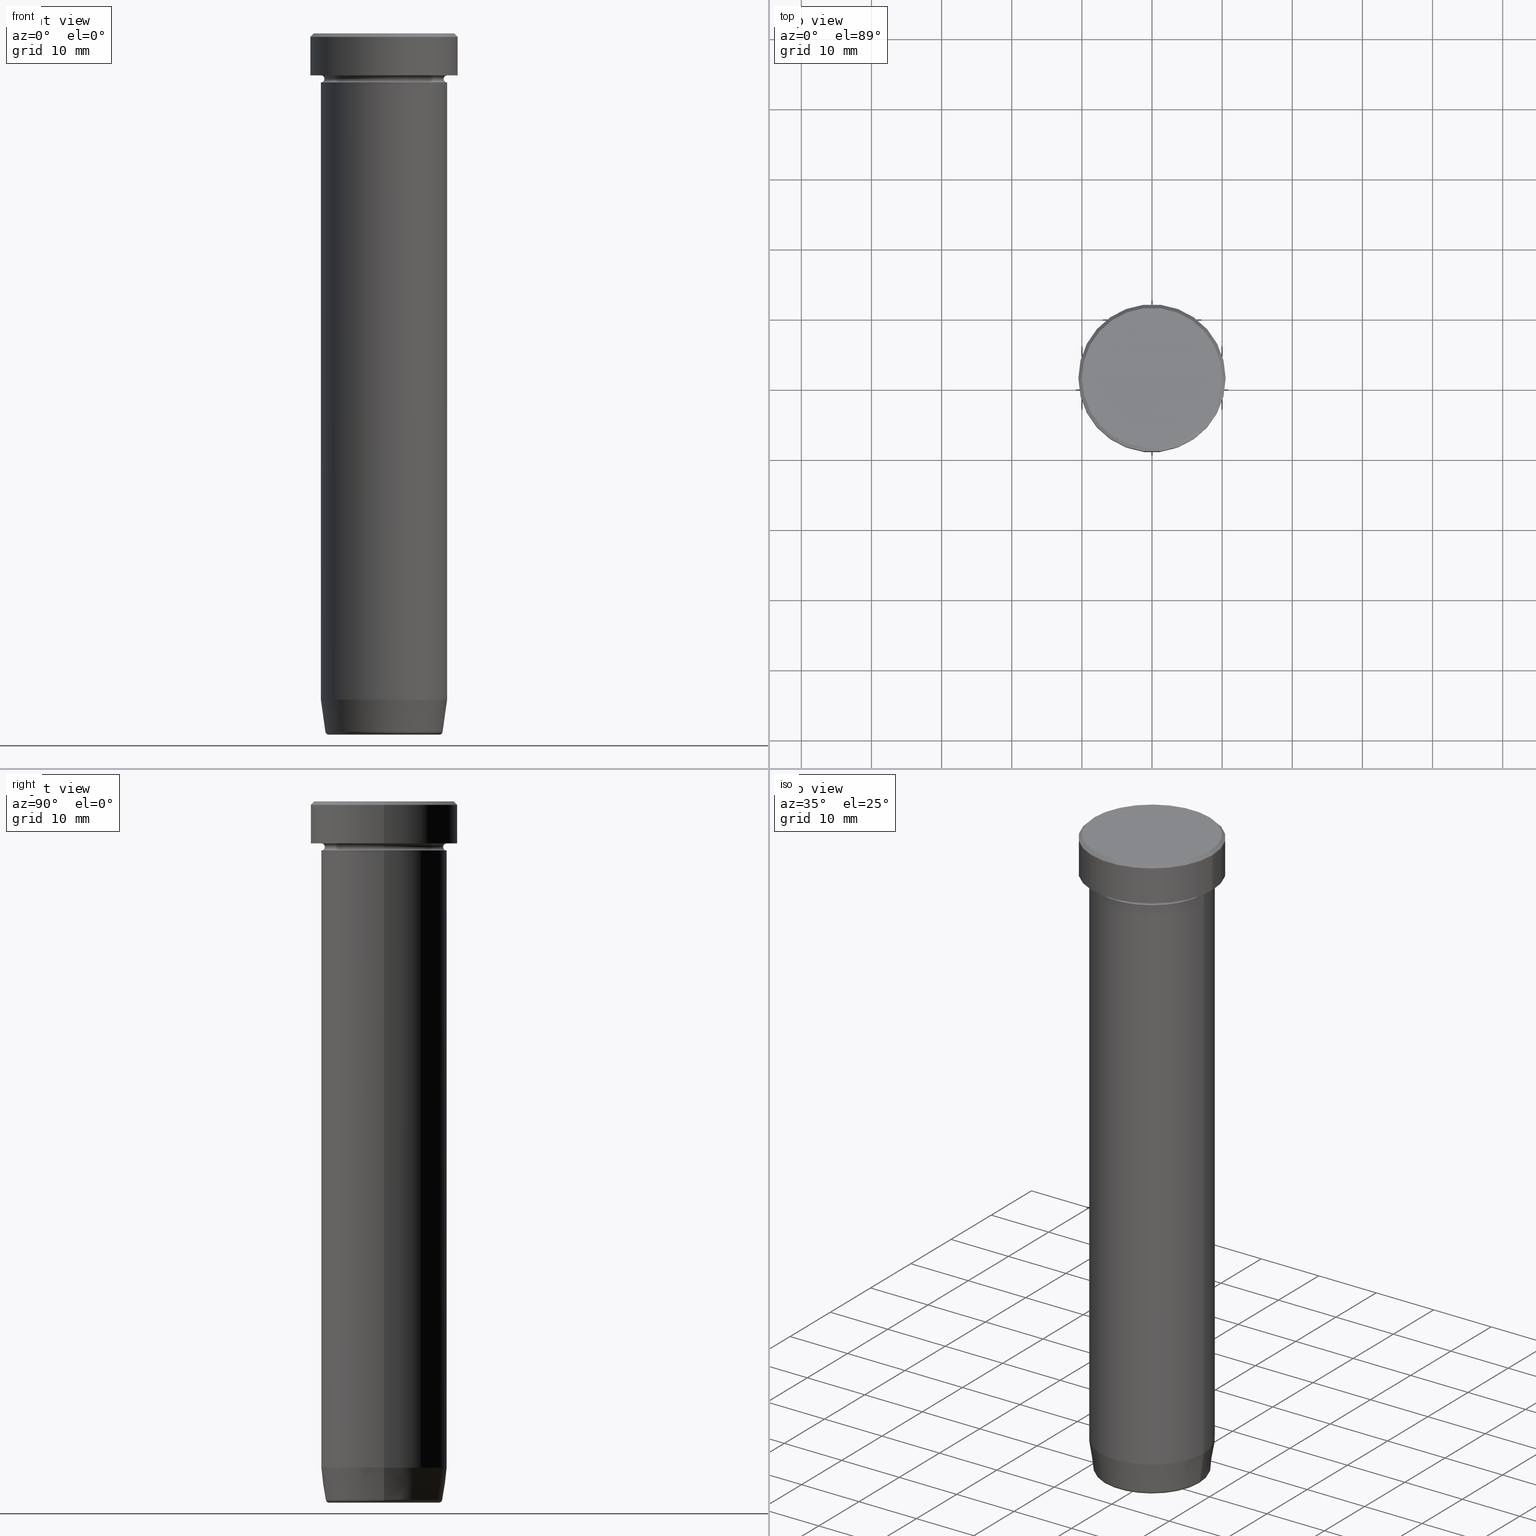
[diagram: canonical four-view strip — front | top / right | iso, engineering-drawing reading convention]
A machine part, canonical four-view strip (front | top / right | iso — engineering-drawing reading convention). The complete STEP part file that produces these views, byte-faithful:
ISO-10303-21;
HEADER;
FILE_DESCRIPTION (( 'STEP AP203' ),
    '1' );
FILE_NAME ('7a6f.STEP',
    '2024-01-02T19:33:57',
    ( '' ),
    ( '' ),
    'SwSTEP 2.0',
    'SolidWorks 2019',
    '' );
FILE_SCHEMA (( 'CONFIG_CONTROL_DESIGN' ));
ENDSEC;

DATA;
#1 = EDGE_CURVE ( 'NONE', #577, #441, #190, .T. ) ;
#2 = CARTESIAN_POINT ( 'NONE',  ( 0.000000000000000000, 0.000000000000000000, -0.5000000000000023315 ) ) ;
#3 = CARTESIAN_POINT ( 'NONE',  ( 0.000000000000000000, 0.000000000000000000, -6.500000000000000888 ) ) ;
#4 = PERSON_AND_ORGANIZATION ( #403, #466 ) ;
#5 = CYLINDRICAL_SURFACE ( 'NONE', #36, 9.000000000000000000 ) ;
#6 = FACE_OUTER_BOUND ( 'NONE', #435, .T. ) ;
#7 = VECTOR ( 'NONE', #461, 1000.000000000000000 ) ;
#8 = DIRECTION ( 'NONE',  ( 0.000000000000000000, 0.000000000000000000, -1.000000000000000000 ) ) ;
#9 = DIRECTION ( 'NONE',  ( -1.000000000000000000, 0.000000000000000000, 0.000000000000000000 ) ) ;
#10 = DIRECTION ( 'NONE',  ( -1.000000000000000000, 0.000000000000000000, 0.000000000000000000 ) ) ;
#11 = CARTESIAN_POINT ( 'NONE',  ( 0.000000000000000000, 0.000000000000000000, 0.000000000000000000 ) ) ;
#12 = ADVANCED_FACE ( 'NONE', ( #47 ), #448, .F. ) ;
#13 = ADVANCED_FACE ( 'NONE', ( #307 ), #498, .T. ) ;
#14 = DIRECTION ( 'NONE',  ( 1.000000000000000000, 0.000000000000000000, 0.000000000000000000 ) ) ;
#15 = CIRCLE ( 'NONE', #58, 9.000000000000000000 ) ;
#16 = ORIENTED_EDGE ( 'NONE', *, *, #437, .T. ) ;
#17 = CARTESIAN_POINT ( 'NONE',  ( 0.000000000000000000, 0.000000000000000000, -100.0000000000000000 ) ) ;
#18 = DIRECTION ( 'NONE',  ( 1.000000000000000000, 0.000000000000000000, 0.000000000000000000 ) ) ;
#19 = EDGE_CURVE ( 'NONE', #206, #134, #452, .T. ) ;
#20 = ORIENTED_EDGE ( 'NONE', *, *, #447, .F. ) ;
#21 = DIRECTION ( 'NONE',  ( 1.000000000000000000, 0.000000000000000000, 0.000000000000000000 ) ) ;
#22 = VERTEX_POINT ( 'NONE', #367 ) ;
#23 = TOROIDAL_SURFACE ( 'NONE', #163, 9.000000000000000000, 0.5000000000000000000 ) ;
#24 = PERSON_AND_ORGANIZATION ( #403, #466 ) ;
#25 = DIRECTION ( 'NONE',  ( -0.000000000000000000, -0.000000000000000000, 1.000000000000000000 ) ) ;
#26 = VERTEX_POINT ( 'NONE', #55 ) ;
#27 = ORIENTED_EDGE ( 'NONE', *, *, #473, .T. ) ;
#28 = AXIS2_PLACEMENT_3D ( 'NONE', #41, #52, #504 ) ;
#29 = APPROVAL_PERSON_ORGANIZATION ( #75, #501, #342 ) ;
#30 = LINE ( 'NONE', #218, #166 ) ;
#31 = ORIENTED_EDGE ( 'NONE', *, *, #585, .T. ) ;
#32 = CARTESIAN_POINT ( 'NONE',  ( -10.50000000000000000, 1.285879139104720831E-15, -0.5000000000000023315 ) ) ;
#33 = ADVANCED_FACE ( 'NONE', ( #512 ), #551, .F. ) ;
#34 = ORIENTED_EDGE ( 'NONE', *, *, #200, .T. ) ;
#35 = CALENDAR_DATE ( 2024, 2, 1 ) ;
#36 = AXIS2_PLACEMENT_3D ( 'NONE', #329, #104, #540 ) ;
#37 = DIRECTION ( 'NONE',  ( 1.000000000000000000, 0.000000000000000000, 0.000000000000000000 ) ) ;
#38 = ORIENTED_EDGE ( 'NONE', *, *, #59, .T. ) ;
#39 = DIRECTION ( 'NONE',  ( -0.000000000000000000, -0.000000000000000000, 1.000000000000000000 ) ) ;
#40 = CIRCLE ( 'NONE', #28, 10.00000000000000178 ) ;
#41 = CARTESIAN_POINT ( 'NONE',  ( 0.000000000000000000, 0.000000000000000000, 0.000000000000000000 ) ) ;
#42 = CIRCLE ( 'NONE', #272, 9.000000000000000000 ) ;
#43 = ORIENTED_EDGE ( 'NONE', *, *, #213, .F. ) ;
#44 = EDGE_CURVE ( 'NONE', #491, #255, #558, .T. ) ;
#45 = DIRECTION ( 'NONE',  ( -0.000000000000000000, -1.000000000000000000, -0.000000000000000000 ) ) ;
#46 = AXIS2_PLACEMENT_3D ( 'NONE', #565, #116, #287 ) ;
#47 = FACE_OUTER_BOUND ( 'NONE', #432, .T. ) ;
#48 = FACE_OUTER_BOUND ( 'NONE', #223, .T. ) ;
#49 = VECTOR ( 'NONE', #84, 1000.000000000000000 ) ;
#50 = DIRECTION ( 'NONE',  ( 0.000000000000000000, -0.000000000000000000, 1.000000000000000000 ) ) ;
#51 = LOCAL_TIME ( 20, 33, 57.00000000000000000, #360 ) ;
#52 = DIRECTION ( 'NONE',  ( -0.000000000000000000, -0.000000000000000000, 1.000000000000000000 ) ) ;
#53 = ORIENTED_EDGE ( 'NONE', *, *, #19, .T. ) ;
#54 = CC_DESIGN_PERSON_AND_ORGANIZATION_ASSIGNMENT ( #468, #425, ( #334 ) ) ;
#55 = CARTESIAN_POINT ( 'NONE',  ( 8.357786491950712104, 0.000000000000000000, -99.56958655048003948 ) ) ;
#56 = CARTESIAN_POINT ( 'NONE',  ( 8.499999999999998224, 0.000000000000000000, -6.500000000000000888 ) ) ;
#57 = DIRECTION ( 'NONE',  ( -0.000000000000000000, -0.000000000000000000, 1.000000000000000000 ) ) ;
#58 = AXIS2_PLACEMENT_3D ( 'NONE', #502, #374, #543 ) ;
#59 = EDGE_CURVE ( 'NONE', #74, #22, #524, .T. ) ;
#60 = CARTESIAN_POINT ( 'NONE',  ( 7.862652457579924814, 0.000000000000000000, -100.0000000000000000 ) ) ;
#61 = CARTESIAN_POINT ( 'NONE',  ( 10.50000000000000000, 0.000000000000000000, -0.5000000000000023315 ) ) ;
#62 = CYLINDRICAL_SURFACE ( 'NONE', #289, 9.000000000000000000 ) ;
#63 = DIRECTION ( 'NONE',  ( -0.000000000000000000, -0.000000000000000000, 1.000000000000000000 ) ) ;
#64 = AXIS2_PLACEMENT_3D ( 'NONE', #517, #467, #157 ) ;
#65 = AXIS2_PLACEMENT_3D ( 'NONE', #557, #284, #151 ) ;
#66 = ORIENTED_EDGE ( 'NONE', *, *, #44, .F. ) ;
#67 =( NAMED_UNIT ( * ) SI_UNIT ( $, .STERADIAN. ) SOLID_ANGLE_UNIT ( ) );
#68 = CIRCLE ( 'NONE', #475, 0.5000000000000004441 ) ;
#69 = LINE ( 'NONE', #415, #7 ) ;
#70 = APPROVAL_PERSON_ORGANIZATION ( #4, #313, #196 ) ;
#71 = DIRECTION ( 'NONE',  ( -0.000000000000000000, -0.000000000000000000, 1.000000000000000000 ) ) ;
#72 = DIRECTION ( 'NONE',  ( -0.000000000000000000, -0.000000000000000000, 1.000000000000000000 ) ) ;
#73 = ADVANCED_FACE ( 'NONE', ( #6 ), #326, .T. ) ;
#74 = VERTEX_POINT ( 'NONE', #56 ) ;
#75 = PERSON_AND_ORGANIZATION ( #403, #466 ) ;
#76 = DIRECTION ( 'NONE',  ( 0.000000000000000000, 0.000000000000000000, -1.000000000000000000 ) ) ;
#77 = ORIENTED_EDGE ( 'NONE', *, *, #482, .F. ) ;
#78 = ORIENTED_EDGE ( 'NONE', *, *, #457, .T. ) ;
#79 = CIRCLE ( 'NONE', #46, 9.000000000000000000 ) ;
#80 = DATE_AND_TIME ( #479, #251 ) ;
#81 = DIRECTION ( 'NONE',  ( 1.224646799147353207E-16, 1.000000000000000000, 0.000000000000000000 ) ) ;
#82 = ORIENTED_EDGE ( 'NONE', *, *, #554, .F. ) ;
#83 = AXIS2_PLACEMENT_3D ( 'NONE', #545, #137, #90 ) ;
#84 = DIRECTION ( 'NONE',  ( -0.000000000000000000, -0.000000000000000000, 1.000000000000000000 ) ) ;
#85 = ADVANCED_FACE ( 'NONE', ( #290 ), #62, .T. ) ;
#86 = VERTEX_POINT ( 'NONE', #323 ) ;
#87 = AXIS2_PLACEMENT_3D ( 'NONE', #381, #297, #18 ) ;
#88 = CARTESIAN_POINT ( 'NONE',  ( 0.000000000000000000, 0.000000000000000000, -99.56958655048003948 ) ) ;
#89 = VECTOR ( 'NONE', #476, 1000.000000000000000 ) ;
#90 = DIRECTION ( 'NONE',  ( -1.000000000000000000, 0.000000000000000000, -0.000000000000000000 ) ) ;
#91 = CIRCLE ( 'NONE', #315, 9.000000000000000000 ) ;
#92 = AXIS2_PLACEMENT_3D ( 'NONE', #503, #181, #463 ) ;
#93 = EDGE_CURVE ( 'NONE', #582, #459, #69, .T. ) ;
#94 = CARTESIAN_POINT ( 'NONE',  ( 0.000000000000000000, 0.000000000000000000, 0.000000000000000000 ) ) ;
#95 = ADVANCED_FACE ( 'NONE', ( #590 ), #492, .T. ) ;
#96 = DIRECTION ( 'NONE',  ( -1.000000000000000000, 0.000000000000000000, 0.000000000000000000 ) ) ;
#97 = AXIS2_PLACEMENT_3D ( 'NONE', #340, #293, #555 ) ;
#98 = CARTESIAN_POINT ( 'NONE',  ( 0.000000000000000000, 2.449293598294707302E-15, -100.0000000000000000 ) ) ;
#99 = DIRECTION ( 'NONE',  ( -1.000000000000000000, 1.224646799147353454E-16, 0.000000000000000000 ) ) ;
#100 = ORIENTED_EDGE ( 'NONE', *, *, #554, .T. ) ;
#101 = VECTOR ( 'NONE', #449, 1000.000000000000000 ) ;
#102 = DIRECTION ( 'NONE',  ( -0.000000000000000000, -0.000000000000000000, 1.000000000000000000 ) ) ;
#103 = COORDINATED_UNIVERSAL_TIME_OFFSET ( 1, 0, .AHEAD. ) ;
#104 = DIRECTION ( 'NONE',  ( -0.000000000000000000, -0.000000000000000000, 1.000000000000000000 ) ) ;
#105 = ADVANCED_FACE ( 'NONE', ( #366 ), #541, .F. ) ;
#106 = CC_DESIGN_PERSON_AND_ORGANIZATION_ASSIGNMENT ( #346, #128, ( #288 ) ) ;
#107 = ADVANCED_FACE ( 'NONE', ( #234 ), #175, .T. ) ;
#108 = DIRECTION ( 'NONE',  ( -0.000000000000000000, -0.000000000000000000, 1.000000000000000000 ) ) ;
#109 = AXIS2_PLACEMENT_3D ( 'NONE', #438, #535, #37 ) ;
#110 = CC_DESIGN_APPROVAL ( #501, ( #288 ) ) ;
#111 = CARTESIAN_POINT ( 'NONE',  ( -10.50000000000000000, 1.285879139104720831E-15, 0.000000000000000000 ) ) ;
#112 = FACE_OUTER_BOUND ( 'NONE', #305, .T. ) ;
#113 = EDGE_CURVE ( 'NONE', #74, #371, #424, .T. ) ;
#114 = CYLINDRICAL_SURFACE ( 'NONE', #407, 9.000000000000000000 ) ;
#115 = CC_DESIGN_PERSON_AND_ORGANIZATION_ASSIGNMENT ( #253, #256, ( #288 ) ) ;
#116 = DIRECTION ( 'NONE',  ( -0.000000000000000000, -0.000000000000000000, 1.000000000000000000 ) ) ;
#117 = ORIENTED_EDGE ( 'NONE', *, *, #570, .T. ) ;
#118 = CARTESIAN_POINT ( 'NONE',  ( 9.000000000000000000, 0.000000000000000000, -7.000000000000000000 ) ) ;
#119 = VECTOR ( 'NONE', #339, 1000.000000000000000 ) ;
#120 = DATE_AND_TIME ( #433, #51 ) ;
#121 = DIRECTION ( 'NONE',  ( 1.000000000000000000, 0.000000000000000000, 0.000000000000000000 ) ) ;
#122 = EDGE_LOOP ( 'NONE', ( #572, #576 ) ) ;
#123 = ORIENTED_EDGE ( 'NONE', *, *, #457, .F. ) ;
#124 = DATE_AND_TIME ( #35, #536 ) ;
#125 = CARTESIAN_POINT ( 'NONE',  ( 0.000000000000000000, 0.000000000000000000, 0.000000000000000000 ) ) ;
#126 = ORIENTED_EDGE ( 'NONE', *, *, #373, .F. ) ;
#127 = EDGE_LOOP ( 'NONE', ( #296, #31 ) ) ;
#128 = PERSON_AND_ORGANIZATION_ROLE ( 'design_supplier' ) ;
#129 = DIRECTION ( 'NONE',  ( 0.000000000000000000, 0.000000000000000000, -1.000000000000000000 ) ) ;
#130 = ORIENTED_EDGE ( 'NONE', *, *, #161, .T. ) ;
#131 = CIRCLE ( 'NONE', #298, 9.000000000000000000 ) ;
#132 = DATE_AND_TIME ( #261, #189 ) ;
#133 = DIRECTION ( 'NONE',  ( 0.000000000000000000, 0.000000000000000000, -1.000000000000000000 ) ) ;
#134 = VERTEX_POINT ( 'NONE', #249 ) ;
#135 = VERTEX_POINT ( 'NONE', #199 ) ;
#136 = TOROIDAL_SURFACE ( 'NONE', #87, 9.000000000000000000, 0.5000000000000000000 ) ;
#137 = DIRECTION ( 'NONE',  ( 0.000000000000000000, 0.000000000000000000, -1.000000000000000000 ) ) ;
#138 = DIRECTION ( 'NONE',  ( 1.224646799147353207E-16, 1.000000000000000000, 0.000000000000000000 ) ) ;
#139 =( GEOMETRIC_REPRESENTATION_CONTEXT ( 3 ) GLOBAL_UNCERTAINTY_ASSIGNED_CONTEXT ( ( #490 ) ) GLOBAL_UNIT_ASSIGNED_CONTEXT ( ( #207, #383, #67 ) ) REPRESENTATION_CONTEXT ( 'NONE', 'WORKASPACE' ) );
#140 = EDGE_CURVE ( 'NONE', #195, #491, #596, .T. ) ;
#141 = DIRECTION ( 'NONE',  ( 1.000000000000000000, 0.000000000000000000, 0.000000000000000000 ) ) ;
#142 = FACE_OUTER_BOUND ( 'NONE', #214, .T. ) ;
#143 = DIRECTION ( 'NONE',  ( 1.000000000000000000, 0.000000000000000000, 0.000000000000000000 ) ) ;
#144 = ORIENTED_EDGE ( 'NONE', *, *, #93, .T. ) ;
#145 = AXIS2_PLACEMENT_3D ( 'NONE', #550, #194, #372 ) ;
#146 = CARTESIAN_POINT ( 'NONE',  ( 0.000000000000000000, 0.000000000000000000, -100.0000000000000000 ) ) ;
#147 = PERSON_AND_ORGANIZATION ( #403, #466 ) ;
#148 = DIRECTION ( 'NONE',  ( -0.000000000000000000, -0.000000000000000000, 1.000000000000000000 ) ) ;
#149 = DIRECTION ( 'NONE',  ( -0.000000000000000000, -0.000000000000000000, 1.000000000000000000 ) ) ;
#150 = DIRECTION ( 'NONE',  ( -0.000000000000000000, -0.000000000000000000, 1.000000000000000000 ) ) ;
#151 = DIRECTION ( 'NONE',  ( 1.000000000000000000, 0.000000000000000000, 0.000000000000000000 ) ) ;
#152 = ADVANCED_FACE ( 'NONE', ( #428 ), #530, .T. ) ;
#153 = AXIS2_PLACEMENT_3D ( 'NONE', #212, #209, #133 ) ;
#154 = AXIS2_PLACEMENT_3D ( 'NONE', #146, #8, #380 ) ;
#155 = APPLICATION_CONTEXT ( 'configuration controlled 3d designs of mechanical parts and assemblies' ) ;
#156 = CARTESIAN_POINT ( 'NONE',  ( -10.00000000000000178, 0.000000000000000000, 0.000000000000000000 ) ) ;
#157 = DIRECTION ( 'NONE',  ( -1.000000000000000000, -1.224646799147353454E-16, 0.000000000000000000 ) ) ;
#158 = VERTEX_POINT ( 'NONE', #118 ) ;
#159 = EDGE_CURVE ( 'NONE', #436, #158, #79, .T. ) ;
#160 = APPROVAL_STATUS ( 'not_yet_approved' ) ;
#161 = EDGE_CURVE ( 'NONE', #135, #507, #312, .T. ) ;
#162 = CARTESIAN_POINT ( 'NONE',  ( 9.000000000000000000, 0.000000000000000000, -22.00000000000000000 ) ) ;
#163 = AXIS2_PLACEMENT_3D ( 'NONE', #465, #472, #568 ) ;
#164 = VERTEX_POINT ( 'NONE', #61 ) ;
#165 = LINE ( 'NONE', #168, #49 ) ;
#166 = VECTOR ( 'NONE', #390, 1000.000000000000000 ) ;
#167 = ORIENTED_EDGE ( 'NONE', *, *, #240, .F. ) ;
#168 = CARTESIAN_POINT ( 'NONE',  ( 10.50000000000000000, 0.000000000000000000, 0.000000000000000000 ) ) ;
#169 = ADVANCED_FACE ( 'NONE', ( #337 ), #426, .T. ) ;
#170 = ORIENTED_EDGE ( 'NONE', *, *, #331, .F. ) ;
#171 = ADVANCED_FACE ( 'NONE', ( #519 ), #136, .F. ) ;
#172 = ORIENTED_EDGE ( 'NONE', *, *, #592, .F. ) ;
#173 = CARTESIAN_POINT ( 'NONE',  ( 0.000000000000000000, 0.000000000000000000, -100.0000000000000000 ) ) ;
#174 = PRODUCT_RELATED_PRODUCT_CATEGORY ( 'detail', '', ( #334 ) ) ;
#175 = CONICAL_SURFACE ( 'NONE', #319, 8.297295826488038983, 0.1396263401595468356 ) ;
#176 = CARTESIAN_POINT ( 'NONE',  ( 0.000000000000000000, 0.000000000000000000, -6.500000000000000888 ) ) ;
#177 = EDGE_LOOP ( 'NONE', ( #427, #16, #78, #495 ) ) ;
#178 = AXIS2_PLACEMENT_3D ( 'NONE', #173, #129, #347 ) ;
#179 = FACE_OUTER_BOUND ( 'NONE', #237, .T. ) ;
#180 = EDGE_LOOP ( 'NONE', ( #528, #82 ) ) ;
#181 = DIRECTION ( 'NONE',  ( 0.000000000000000000, -0.000000000000000000, 1.000000000000000000 ) ) ;
#182 = CARTESIAN_POINT ( 'NONE',  ( 7.862652457579924814, 0.000000000000000000, -99.50000000000000000 ) ) ;
#183 = ORIENTED_EDGE ( 'NONE', *, *, #1, .F. ) ;
#184 = CARTESIAN_POINT ( 'NONE',  ( 9.000000000000000000, 0.000000000000000000, 0.000000000000000000 ) ) ;
#185 = ORIENTED_EDGE ( 'NONE', *, *, #570, .F. ) ;
#186 = ORIENTED_EDGE ( 'NONE', *, *, #373, .T. ) ;
#187 = CIRCLE ( 'NONE', #336, 0.5000000000000004441 ) ;
#188 = CARTESIAN_POINT ( 'NONE',  ( -9.000000000000000000, 0.000000000000000000, -6.000000000000000000 ) ) ;
#189 = LOCAL_TIME ( 20, 33, 57.00000000000000000, #265 ) ;
#190 = CIRCLE ( 'NONE', #598, 9.000000000000000000 ) ;
#191 = CARTESIAN_POINT ( 'NONE',  ( 0.000000000000000000, 0.000000000000000000, -22.00000000000000000 ) ) ;
#192 = PLANE ( 'NONE',  #83 ) ;
#193 = DIRECTION ( 'NONE',  ( 1.000000000000000000, 0.000000000000000000, 0.000000000000000000 ) ) ;
#194 = DIRECTION ( 'NONE',  ( -0.000000000000000000, -0.000000000000000000, 1.000000000000000000 ) ) ;
#195 = VERTEX_POINT ( 'NONE', #423 ) ;
#196 = APPROVAL_ROLE ( '' ) ;
#197 = CIRCLE ( 'NONE', #178, 7.862652457579924814 ) ;
#198 = VECTOR ( 'NONE', #333, 1000.000000000000000 ) ;
#199 = CARTESIAN_POINT ( 'NONE',  ( 10.00000000000000178, 1.255262969126037241E-15, 0.000000000000000000 ) ) ;
#200 = EDGE_CURVE ( 'NONE', #459, #266, #321, .T. ) ;
#201 = DIRECTION ( 'NONE',  ( -0.000000000000000000, -0.000000000000000000, 1.000000000000000000 ) ) ;
#202 = DIRECTION ( 'NONE',  ( 1.000000000000000000, 0.000000000000000000, 0.000000000000000000 ) ) ;
#203 = AXIS2_PLACEMENT_3D ( 'NONE', #431, #222, #21 ) ;
#204 = CONICAL_SURFACE ( 'NONE', #497, 8.297295826488038983, 0.1396263401595468356 ) ;
#205 = ADVANCED_FACE ( 'NONE', ( #112 ), #23, .F. ) ;
#206 = VERTEX_POINT ( 'NONE', #162 ) ;
#207 =( LENGTH_UNIT ( ) NAMED_UNIT ( * ) SI_UNIT ( .MILLI., .METRE. ) );
#208 = EDGE_LOOP ( 'NONE', ( #304, #219, #43, #172 ) ) ;
#209 = DIRECTION ( 'NONE',  ( 0.000000000000000000, -1.000000000000000000, 0.000000000000000000 ) ) ;
#210 = ORIENTED_EDGE ( 'NONE', *, *, #140, .F. ) ;
#211 = ADVANCED_FACE ( 'NONE', ( #419 ), #5, .T. ) ;
#212 = CARTESIAN_POINT ( 'NONE',  ( 9.000000000000000000, 0.000000000000000000, -6.500000000000000888 ) ) ;
#213 = EDGE_CURVE ( 'NONE', #255, #164, #295, .T. ) ;
#214 = EDGE_LOOP ( 'NONE', ( #518, #144, #185, #123 ) ) ;
#215 = AXIS2_PLACEMENT_3D ( 'NONE', #176, #25, #121 ) ;
#216 = CC_DESIGN_APPROVAL ( #313, ( #254 ) ) ;
#217 = ORIENTED_EDGE ( 'NONE', *, *, #473, .F. ) ;
#218 = CARTESIAN_POINT ( 'NONE',  ( -9.000000000000000000, 1.102182119232617714E-15, 0.000000000000000000 ) ) ;
#219 = ORIENTED_EDGE ( 'NONE', *, *, #240, .T. ) ;
#220 = CARTESIAN_POINT ( 'NONE',  ( 0.000000000000000000, 0.000000000000000000, -100.0000000000000000 ) ) ;
#221 = ORIENTED_EDGE ( 'NONE', *, *, #500, .T. ) ;
#222 = DIRECTION ( 'NONE',  ( -0.000000000000000000, -0.000000000000000000, 1.000000000000000000 ) ) ;
#223 = EDGE_LOOP ( 'NONE', ( #66, #232, #395, #405 ) ) ;
#224 = CARTESIAN_POINT ( 'NONE',  ( 0.000000000000000000, 0.000000000000000000, -22.00000000000000000 ) ) ;
#225 = FACE_OUTER_BOUND ( 'NONE', #180, .T. ) ;
#226 = DIRECTION ( 'NONE',  ( 0.000000000000000000, 0.000000000000000000, -1.000000000000000000 ) ) ;
#227 = ORIENTED_EDGE ( 'NONE', *, *, #229, .T. ) ;
#228 = CARTESIAN_POINT ( 'NONE',  ( -10.00000000000000178, 0.000000000000000000, 0.000000000000000000 ) ) ;
#229 = EDGE_CURVE ( 'NONE', #158, #436, #406, .T. ) ;
#230 = AXIS2_PLACEMENT_3D ( 'NONE', #571, #76, #356 ) ;
#231 = DIRECTION ( 'NONE',  ( -0.000000000000000000, -0.000000000000000000, 1.000000000000000000 ) ) ;
#232 = ORIENTED_EDGE ( 'NONE', *, *, #579, .T. ) ;
#233 = AXIS2_PLACEMENT_3D ( 'NONE', #462, #246, #14 ) ;
#234 = FACE_OUTER_BOUND ( 'NONE', #177, .T. ) ;
#235 = CARTESIAN_POINT ( 'NONE',  ( 0.000000000000000000, 0.000000000000000000, -6.500000000000000888 ) ) ;
#236 = DIRECTION ( 'NONE',  ( 0.000000000000000000, -1.000000000000000000, 0.000000000000000000 ) ) ;
#237 = EDGE_LOOP ( 'NONE', ( #170, #34, #402, #183 ) ) ;
#238 = MECHANICAL_CONTEXT ( 'NONE', #155, 'mechanical' ) ;
#239 = DIRECTION ( 'NONE',  ( -0.000000000000000000, -0.000000000000000000, 1.000000000000000000 ) ) ;
#240 = EDGE_CURVE ( 'NONE', #135, #164, #489, .T. ) ;
#241 = CARTESIAN_POINT ( 'NONE',  ( 0.000000000000000000, 0.000000000000000000, -95.00000000000000000 ) ) ;
#242 = CIRCLE ( 'NONE', #286, 0.5000000000000004441 ) ;
#243 = AXIS2_PLACEMENT_3D ( 'NONE', #464, #108, #202 ) ;
#244 = CARTESIAN_POINT ( 'NONE',  ( 0.000000000000000000, 0.000000000000000000, 0.000000000000000000 ) ) ;
#245 = PRODUCT_DEFINITION_SHAPE ( 'NONE', 'NONE',  #254 ) ;
#246 = DIRECTION ( 'NONE',  ( 0.000000000000000000, 0.000000000000000000, 1.000000000000000000 ) ) ;
#247 = DIRECTION ( 'NONE',  ( 0.000000000000000000, 0.000000000000000000, -1.000000000000000000 ) ) ;
#248 = ORIENTED_EDGE ( 'NONE', *, *, #592, .T. ) ;
#249 = CARTESIAN_POINT ( 'NONE',  ( -9.000000000000000000, 1.102182119232617714E-15, -22.00000000000000000 ) ) ;
#250 = APPROVAL ( #533, 'NEUR�EN�' ) ;
#251 = LOCAL_TIME ( 20, 33, 57.00000000000000000, #351 ) ;
#252 = EDGE_LOOP ( 'NONE', ( #357, #100, #529, #271 ) ) ;
#253 = PERSON_AND_ORGANIZATION ( #403, #466 ) ;
#254 = PRODUCT_DEFINITION ( 'NEZN�M�', '', #288, #575 ) ;
#255 = VERTEX_POINT ( 'NONE', #32 ) ;
#256 = PERSON_AND_ORGANIZATION_ROLE ( 'creator' ) ;
#257 = CARTESIAN_POINT ( 'NONE',  ( 9.000000000000000000, 1.102182119232617714E-15, -6.000000000000000000 ) ) ;
#258 = ORIENTED_EDGE ( 'NONE', *, *, #308, .F. ) ;
#259 = ORIENTED_EDGE ( 'NONE', *, *, #113, .T. ) ;
#260 = CC_DESIGN_DATE_AND_TIME_ASSIGNMENT ( #132, #526, ( #440 ) ) ;
#261 = CALENDAR_DATE ( 2024, 2, 1 ) ;
#262 = ORIENTED_EDGE ( 'NONE', *, *, #300, .T. ) ;
#263 = CIRCLE ( 'NONE', #496, 0.5000000000000004441 ) ;
#264 = CC_DESIGN_APPROVAL ( #250, ( #440 ) ) ;
#265 = COORDINATED_UNIVERSAL_TIME_OFFSET ( 1, 0, .AHEAD. ) ;
#266 = VERTEX_POINT ( 'NONE', #487 ) ;
#267 = DIRECTION ( 'NONE',  ( -1.000000000000000000, 0.000000000000000000, -0.000000000000000000 ) ) ;
#268 = CARTESIAN_POINT ( 'NONE',  ( -9.000000000000000000, 1.102182119232617714E-15, 0.000000000000000000 ) ) ;
#269 = EDGE_CURVE ( 'NONE', #195, #164, #165, .T. ) ;
#270 = LINE ( 'NONE', #184, #363 ) ;
#271 = ORIENTED_EDGE ( 'NONE', *, *, #159, .F. ) ;
#272 = AXIS2_PLACEMENT_3D ( 'NONE', #292, #330, #10 ) ;
#273 = AXIS2_PLACEMENT_3D ( 'NONE', #235, #149, #141 ) ;
#274 = DIRECTION ( 'NONE',  ( 0.000000000000000000, 0.000000000000000000, -1.000000000000000000 ) ) ;
#275 = CARTESIAN_POINT ( 'NONE',  ( 0.000000000000000000, 0.000000000000000000, -6.000000000000000000 ) ) ;
#276 = AXIS2_PLACEMENT_3D ( 'NONE', #98, #50, #193 ) ;
#277 = AXIS2_PLACEMENT_3D ( 'NONE', #11, #247, #9 ) ;
#278 = CARTESIAN_POINT ( 'NONE',  ( -9.000000000000000000, 1.102182119232617714E-15, -95.00000000000000000 ) ) ;
#279 = AXIS2_PLACEMENT_3D ( 'NONE', #2, #322, #597 ) ;
#280 = DIRECTION ( 'NONE',  ( 0.000000000000000000, 0.000000000000000000, -1.000000000000000000 ) ) ;
#281 = ORIENTED_EDGE ( 'NONE', *, *, #579, .F. ) ;
#282 = EDGE_CURVE ( 'NONE', #206, #158, #480, .T. ) ;
#283 = APPROVAL_DATE_TIME ( #510, #313 ) ;
#284 = DIRECTION ( 'NONE',  ( -0.000000000000000000, -0.000000000000000000, 1.000000000000000000 ) ) ;
#285 = DIRECTION ( 'NONE',  ( -0.000000000000000000, -0.000000000000000000, 1.000000000000000000 ) ) ;
#286 = AXIS2_PLACEMENT_3D ( 'NONE', #182, #236, #226 ) ;
#287 = DIRECTION ( 'NONE',  ( 1.000000000000000000, 0.000000000000000000, 0.000000000000000000 ) ) ;
#288 = PRODUCT_DEFINITION_FORMATION_WITH_SPECIFIED_SOURCE ( 'LIBOVOLN�', '', #334, .NOT_KNOWN. ) ;
#289 = AXIS2_PLACEMENT_3D ( 'NONE', #320, #547, #143 ) ;
#290 = FACE_OUTER_BOUND ( 'NONE', #252, .T. ) ;
#291 = EDGE_CURVE ( 'NONE', #22, #436, #263, .T. ) ;
#292 = CARTESIAN_POINT ( 'NONE',  ( 0.000000000000000000, 0.000000000000000000, -6.000000000000000000 ) ) ;
#293 = DIRECTION ( 'NONE',  ( -0.000000000000000000, -0.000000000000000000, 1.000000000000000000 ) ) ;
#294 = ORIENTED_EDGE ( 'NONE', *, *, #500, .F. ) ;
#295 = CIRCLE ( 'NONE', #369, 10.50000000000000000 ) ;
#296 = ORIENTED_EDGE ( 'NONE', *, *, #387, .T. ) ;
#297 = DIRECTION ( 'NONE',  ( -0.000000000000000000, -0.000000000000000000, 1.000000000000000000 ) ) ;
#298 = AXIS2_PLACEMENT_3D ( 'NONE', #275, #454, #599 ) ;
#299 = EDGE_CURVE ( 'NONE', #22, #74, #573, .T. ) ;
#300 = EDGE_CURVE ( 'NONE', #134, #436, #527, .T. ) ;
#301 = ORIENTED_EDGE ( 'NONE', *, *, #447, .T. ) ;
#302 = CYLINDRICAL_SURFACE ( 'NONE', #203, 9.000000000000000000 ) ;
#303 = ADVANCED_FACE ( 'NONE', ( #179 ), #302, .T. ) ;
#304 = ORIENTED_EDGE ( 'NONE', *, *, #161, .F. ) ;
#305 = EDGE_LOOP ( 'NONE', ( #398, #259, #481, #20 ) ) ;
#306 = APPROVAL_ROLE ( '' ) ;
#307 = FACE_OUTER_BOUND ( 'NONE', #317, .T. ) ;
#308 = EDGE_CURVE ( 'NONE', #74, #158, #420, .T. ) ;
#309 = EDGE_LOOP ( 'NONE', ( #210, #281 ) ) ;
#310 = CARTESIAN_POINT ( 'NONE',  ( -9.000000000000000000, 0.000000000000000000, -6.500000000000000888 ) ) ;
#311 = ORIENTED_EDGE ( 'NONE', *, *, #299, .F. ) ;
#312 = CIRCLE ( 'NONE', #97, 10.00000000000000178 ) ;
#313 = APPROVAL ( #556, 'NEUR�EN�' ) ;
#314 = VECTOR ( 'NONE', #72, 1000.000000000000000 ) ;
#315 = AXIS2_PLACEMENT_3D ( 'NONE', #241, #559, #378 ) ;
#316 = CYLINDRICAL_SURFACE ( 'NONE', #458, 10.50000000000000000 ) ;
#317 = EDGE_LOOP ( 'NONE', ( #445, #221, #486, #217 ) ) ;
#318 = CARTESIAN_POINT ( 'NONE',  ( -9.000000000000000000, 1.102182119232617714E-15, -7.000000000000000000 ) ) ;
#319 = AXIS2_PLACEMENT_3D ( 'NONE', #220, #63, #343 ) ;
#320 = CARTESIAN_POINT ( 'NONE',  ( 0.000000000000000000, 0.000000000000000000, 0.000000000000000000 ) ) ;
#321 = CIRCLE ( 'NONE', #417, 9.000000000000000000 ) ;
#322 = DIRECTION ( 'NONE',  ( 0.000000000000000000, 0.000000000000000000, -1.000000000000000000 ) ) ;
#323 = CARTESIAN_POINT ( 'NONE',  ( -7.862652457579924814, 9.932154320153873918E-16, -100.0000000000000000 ) ) ;
#324 = CONICAL_SURFACE ( 'NONE', #379, 10.00000000000000178, 0.7853981633974447263 ) ;
#325 = FACE_OUTER_BOUND ( 'NONE', #355, .T. ) ;
#326 = TOROIDAL_SURFACE ( 'NONE', #394, 7.862652457579924814, 0.5000000000000000000 ) ;
#327 = ADVANCED_BREP_SHAPE_REPRESENTATION ( '7a6f', ( #361, #353, #233 ), #139 ) ;
#328 = CALENDAR_DATE ( 2024, 2, 1 ) ;
#329 = CARTESIAN_POINT ( 'NONE',  ( 0.000000000000000000, 0.000000000000000000, 0.000000000000000000 ) ) ;
#330 = DIRECTION ( 'NONE',  ( -0.000000000000000000, -0.000000000000000000, 1.000000000000000000 ) ) ;
#331 = EDGE_CURVE ( 'NONE', #459, #577, #30, .T. ) ;
#332 = ADVANCED_FACE ( 'NONE', ( #523 ), #324, .T. ) ;
#333 = DIRECTION ( 'NONE',  ( -0.000000000000000000, -0.000000000000000000, 1.000000000000000000 ) ) ;
#334 = PRODUCT ( '7a6f', '7a6f', '', ( #238 ) ) ;
#335 = DIRECTION ( 'NONE',  ( 1.000000000000000000, 0.000000000000000000, 0.000000000000000000 ) ) ;
#336 = AXIS2_PLACEMENT_3D ( 'NONE', #410, #138, #99 ) ;
#337 = FACE_OUTER_BOUND ( 'NONE', #581, .T. ) ;
#338 = AXIS2_PLACEMENT_3D ( 'NONE', #224, #39, #591 ) ;
#339 = DIRECTION ( 'NONE',  ( -0.7071067811865450192, 0.000000000000000000, -0.7071067811865500152 ) ) ;
#340 = CARTESIAN_POINT ( 'NONE',  ( 0.000000000000000000, 0.000000000000000000, 0.000000000000000000 ) ) ;
#341 = ORIENTED_EDGE ( 'NONE', *, *, #437, .F. ) ;
#342 = APPROVAL_ROLE ( '' ) ;
#343 = DIRECTION ( 'NONE',  ( 1.000000000000000000, 0.000000000000000000, 0.000000000000000000 ) ) ;
#344 = AXIS2_PLACEMENT_3D ( 'NONE', #560, #148, #469 ) ;
#345 = ORIENTED_EDGE ( 'NONE', *, *, #282, .F. ) ;
#346 = PERSON_AND_ORGANIZATION ( #403, #466 ) ;
#347 = DIRECTION ( 'NONE',  ( 1.000000000000000000, 0.000000000000000000, 0.000000000000000000 ) ) ;
#348 = ADVANCED_FACE ( 'NONE', ( #580 ), #375, .F. ) ;
#349 = LOCAL_TIME ( 20, 33, 57.00000000000000000, #103 ) ;
#350 = ORIENTED_EDGE ( 'NONE', *, *, #269, .F. ) ;
#351 = COORDINATED_UNIVERSAL_TIME_OFFSET ( 1, 0, .AHEAD. ) ;
#352 = CARTESIAN_POINT ( 'NONE',  ( 10.00000000000000178, 1.224646799147353454E-15, 0.000000000000000000 ) ) ;
#353 = MANIFOLD_SOLID_BREP ( 'Zaoblit4', #377 ) ;
#354 = ORIENTED_EDGE ( 'NONE', *, *, #561, .F. ) ;
#355 = EDGE_LOOP ( 'NONE', ( #117, #531, #126, #566 ) ) ;
#356 = DIRECTION ( 'NONE',  ( -1.000000000000000000, 0.000000000000000000, 0.000000000000000000 ) ) ;
#357 = ORIENTED_EDGE ( 'NONE', *, *, #300, .F. ) ;
#358 = EDGE_CURVE ( 'NONE', #86, #584, #197, .T. ) ;
#359 = EDGE_LOOP ( 'NONE', ( #532, #130 ) ) ;
#360 = COORDINATED_UNIVERSAL_TIME_OFFSET ( 1, 0, .AHEAD. ) ;
#361 = MANIFOLD_SOLID_BREP ( 'Zkosen�1', #364 ) ;
#362 = CARTESIAN_POINT ( 'NONE',  ( -9.000000000000000000, 1.102182119232617714E-15, -6.500000000000000888 ) ) ;
#363 = VECTOR ( 'NONE', #408, 1000.000000000000000 ) ;
#364 = CLOSED_SHELL ( 'NONE', ( #332, #205, #171, #211, #169, #508, #95, #511, #509, #85, #33, #348, #152 ) ) ;
#365 = ORIENTED_EDGE ( 'NONE', *, *, #1, .T. ) ;
#366 = FACE_OUTER_BOUND ( 'NONE', #122, .T. ) ;
#367 = CARTESIAN_POINT ( 'NONE',  ( -8.499999999999998224, 1.071565949253933927E-15, -6.500000000000000888 ) ) ;
#368 = CARTESIAN_POINT ( 'NONE',  ( -10.50000000000000000, 1.285879139104720831E-15, -6.000000000000000000 ) ) ;
#369 = AXIS2_PLACEMENT_3D ( 'NONE', #587, #442, #434 ) ;
#370 = FACE_OUTER_BOUND ( 'NONE', #309, .T. ) ;
#371 = VERTEX_POINT ( 'NONE', #257 ) ;
#372 = DIRECTION ( 'NONE',  ( -1.000000000000000000, 0.000000000000000000, 0.000000000000000000 ) ) ;
#373 = EDGE_CURVE ( 'NONE', #441, #577, #15, .T. ) ;
#374 = DIRECTION ( 'NONE',  ( -0.000000000000000000, -0.000000000000000000, 1.000000000000000000 ) ) ;
#375 = TOROIDAL_SURFACE ( 'NONE', #230, 9.000000000000000000, 0.5000000000000000000 ) ;
#376 = CC_DESIGN_SECURITY_CLASSIFICATION ( #440, ( #288 ) ) ;
#377 = CLOSED_SHELL ( 'NONE', ( #13, #548, #595, #12, #303, #107, #105, #73 ) ) ;
#378 = DIRECTION ( 'NONE',  ( 1.000000000000000000, 0.000000000000000000, 0.000000000000000000 ) ) ;
#379 = AXIS2_PLACEMENT_3D ( 'NONE', #125, #386, #397 ) ;
#380 = DIRECTION ( 'NONE',  ( 1.000000000000000000, 0.000000000000000000, 0.000000000000000000 ) ) ;
#381 = CARTESIAN_POINT ( 'NONE',  ( 0.000000000000000000, 0.000000000000000000, -6.500000000000000888 ) ) ;
#382 = ORIENTED_EDGE ( 'NONE', *, *, #140, .T. ) ;
#383 =( NAMED_UNIT ( * ) PLANE_ANGLE_UNIT ( ) SI_UNIT ( $, .RADIAN. ) );
#384 = DIRECTION ( 'NONE',  ( 1.000000000000000000, 0.000000000000000000, 0.000000000000000000 ) ) ;
#385 = EDGE_LOOP ( 'NONE', ( #53, #262, #412, #345 ) ) ;
#386 = DIRECTION ( 'NONE',  ( 0.000000000000000000, 0.000000000000000000, -1.000000000000000000 ) ) ;
#387 = EDGE_CURVE ( 'NONE', #400, #371, #131, .T. ) ;
#388 = ORIENTED_EDGE ( 'NONE', *, *, #291, .T. ) ;
#389 = DATE_TIME_ROLE ( 'creation_date' ) ;
#390 = DIRECTION ( 'NONE',  ( -0.000000000000000000, -0.000000000000000000, 1.000000000000000000 ) ) ;
#391 = CIRCLE ( 'NONE', #279, 10.50000000000000000 ) ;
#392 = AXIS2_PLACEMENT_3D ( 'NONE', #506, #285, #335 ) ;
#393 = ORIENTED_EDGE ( 'NONE', *, *, #213, .T. ) ;
#394 = AXIS2_PLACEMENT_3D ( 'NONE', #416, #102, #513 ) ;
#395 = ORIENTED_EDGE ( 'NONE', *, *, #269, .T. ) ;
#396 = PERSON_AND_ORGANIZATION_ROLE ( 'classification_officer' ) ;
#397 = DIRECTION ( 'NONE',  ( -1.000000000000000000, 0.000000000000000000, 0.000000000000000000 ) ) ;
#398 = ORIENTED_EDGE ( 'NONE', *, *, #299, .T. ) ;
#399 = EDGE_CURVE ( 'NONE', #164, #255, #391, .T. ) ;
#400 = VERTEX_POINT ( 'NONE', #188 ) ;
#401 = DIRECTION ( 'NONE',  ( 0.7071067811865450192, 8.659560562354902043E-17, -0.7071067811865500152 ) ) ;
#402 = ORIENTED_EDGE ( 'NONE', *, *, #446, .T. ) ;
#403 = PERSON ( 'NEUR�EN�', 'NEUR�EN�', 'NEUR�EN�', ('NEUR�EN�'), ('NEUR�EN�'), ('NEUR�EN�') ) ;
#404 = CARTESIAN_POINT ( 'NONE',  ( 0.000000000000000000, 0.000000000000000000, -99.50000000000000000 ) ) ;
#405 = ORIENTED_EDGE ( 'NONE', *, *, #399, .T. ) ;
#406 = CIRCLE ( 'NONE', #109, 9.000000000000000000 ) ;
#407 = AXIS2_PLACEMENT_3D ( 'NONE', #244, #150, #471 ) ;
#408 = DIRECTION ( 'NONE',  ( -0.000000000000000000, -0.000000000000000000, 1.000000000000000000 ) ) ;
#409 = FACE_BOUND ( 'NONE', #127, .T. ) ;
#410 = CARTESIAN_POINT ( 'NONE',  ( -7.862652457579924814, 9.628972164983326593E-16, -99.50000000000000000 ) ) ;
#411 = DIRECTION ( 'NONE',  ( 1.000000000000000000, 0.000000000000000000, 0.000000000000000000 ) ) ;
#412 = ORIENTED_EDGE ( 'NONE', *, *, #229, .F. ) ;
#413 = EDGE_CURVE ( 'NONE', #26, #582, #451, .T. ) ;
#414 = DIRECTION ( 'NONE',  ( -1.000000000000000000, 0.000000000000000000, -0.000000000000000000 ) ) ;
#415 = CARTESIAN_POINT ( 'NONE',  ( -8.297295826488038983, 1.016125677548726948E-15, -100.0000000000000000 ) ) ;
#416 = CARTESIAN_POINT ( 'NONE',  ( 0.000000000000000000, 0.000000000000000000, -99.50000000000000000 ) ) ;
#417 = AXIS2_PLACEMENT_3D ( 'NONE', #515, #239, #384 ) ;
#418 = APPLICATION_PROTOCOL_DEFINITION ( 'international standard', 'config_control_design', 1994, #477 ) ;
#419 = FACE_OUTER_BOUND ( 'NONE', #385, .T. ) ;
#420 = CIRCLE ( 'NONE', #153, 0.5000000000000004441 ) ;
#421 = APPLICATION_PROTOCOL_DEFINITION ( 'international standard', 'config_control_design', 1994, #155 ) ;
#422 = CARTESIAN_POINT ( 'NONE',  ( -9.000000000000000000, 1.102182119232617714E-15, -22.00000000000000000 ) ) ;
#423 = CARTESIAN_POINT ( 'NONE',  ( 10.50000000000000000, 0.000000000000000000, -6.000000000000000000 ) ) ;
#424 = CIRCLE ( 'NONE', #64, 0.5000000000000004441 ) ;
#425 = PERSON_AND_ORGANIZATION_ROLE ( 'design_owner' ) ;
#426 = CYLINDRICAL_SURFACE ( 'NONE', #65, 10.50000000000000000 ) ;
#427 = ORIENTED_EDGE ( 'NONE', *, *, #93, .F. ) ;
#428 = FACE_OUTER_BOUND ( 'NONE', #478, .T. ) ;
#429 = ORIENTED_EDGE ( 'NONE', *, *, #308, .T. ) ;
#430 = SHAPE_DEFINITION_REPRESENTATION ( #245, #327 ) ;
#431 = CARTESIAN_POINT ( 'NONE',  ( 0.000000000000000000, 0.000000000000000000, 0.000000000000000000 ) ) ;
#432 = EDGE_LOOP ( 'NONE', ( #186, #365 ) ) ;
#433 = CALENDAR_DATE ( 2024, 2, 1 ) ;
#434 = DIRECTION ( 'NONE',  ( 1.000000000000000000, 0.000000000000000000, 0.000000000000000000 ) ) ;
#435 = EDGE_LOOP ( 'NONE', ( #294, #354, #27, #341 ) ) ;
#436 = VERTEX_POINT ( 'NONE', #318 ) ;
#437 = EDGE_CURVE ( 'NONE', #582, #26, #488, .T. ) ;
#438 = CARTESIAN_POINT ( 'NONE',  ( 0.000000000000000000, 0.000000000000000000, -7.000000000000000000 ) ) ;
#439 = VECTOR ( 'NONE', #401, 1000.000000000000000 ) ;
#440 = SECURITY_CLASSIFICATION ( '', '', #521 ) ;
#441 = VERTEX_POINT ( 'NONE', #593 ) ;
#442 = DIRECTION ( 'NONE',  ( 0.000000000000000000, 0.000000000000000000, -1.000000000000000000 ) ) ;
#443 = ORIENTED_EDGE ( 'NONE', *, *, #399, .F. ) ;
#444 = PERSON_AND_ORGANIZATION_ROLE ( 'creator' ) ;
#445 = ORIENTED_EDGE ( 'NONE', *, *, #358, .F. ) ;
#446 = EDGE_CURVE ( 'NONE', #266, #441, #270, .T. ) ;
#447 = EDGE_CURVE ( 'NONE', #22, #400, #68, .T. ) ;
#448 = PLANE ( 'NONE',  #460 ) ;
#449 = DIRECTION ( 'NONE',  ( 0.1391731009600659097, 0.000000000000000000, 0.9902680687415702510 ) ) ;
#450 = ORIENTED_EDGE ( 'NONE', *, *, #59, .F. ) ;
#451 = CIRCLE ( 'NONE', #544, 8.357786491950712104 ) ;
#452 = CIRCLE ( 'NONE', #338, 9.000000000000000000 ) ;
#453 = DIRECTION ( 'NONE',  ( 1.000000000000000000, 0.000000000000000000, 0.000000000000000000 ) ) ;
#454 = DIRECTION ( 'NONE',  ( -0.000000000000000000, -0.000000000000000000, 1.000000000000000000 ) ) ;
#455 = DIRECTION ( 'NONE',  ( -0.000000000000000000, -0.000000000000000000, 1.000000000000000000 ) ) ;
#456 = PLANE ( 'NONE',  #562 ) ;
#457 = EDGE_CURVE ( 'NONE', #26, #266, #499, .T. ) ;
#458 = AXIS2_PLACEMENT_3D ( 'NONE', #94, #231, #411 ) ;
#459 = VERTEX_POINT ( 'NONE', #278 ) ;
#460 = AXIS2_PLACEMENT_3D ( 'NONE', #191, #274, #267 ) ;
#461 = DIRECTION ( 'NONE',  ( -0.1391731009600659097, 1.704378926181561528E-17, 0.9902680687415702510 ) ) ;
#462 = CARTESIAN_POINT ( 'NONE',  ( 0.000000000000000000, 0.000000000000000000, 0.000000000000000000 ) ) ;
#463 = DIRECTION ( 'NONE',  ( 1.000000000000000000, 0.000000000000000000, 0.000000000000000000 ) ) ;
#464 = CARTESIAN_POINT ( 'NONE',  ( 0.000000000000000000, 0.000000000000000000, -22.00000000000000000 ) ) ;
#465 = CARTESIAN_POINT ( 'NONE',  ( 0.000000000000000000, 0.000000000000000000, -6.500000000000000888 ) ) ;
#466 = ORGANIZATION ( 'NEUR�EN�', 'NEUR�EN�', '' ) ;
#467 = DIRECTION ( 'NONE',  ( -1.224646799147353207E-16, 1.000000000000000000, 0.000000000000000000 ) ) ;
#468 = PERSON_AND_ORGANIZATION ( #403, #466 ) ;
#469 = DIRECTION ( 'NONE',  ( 1.000000000000000000, 0.000000000000000000, 0.000000000000000000 ) ) ;
#470 = EDGE_LOOP ( 'NONE', ( #594, #450, #429, #227 ) ) ;
#471 = DIRECTION ( 'NONE',  ( 1.000000000000000000, 0.000000000000000000, 0.000000000000000000 ) ) ;
#472 = DIRECTION ( 'NONE',  ( 0.000000000000000000, 0.000000000000000000, -1.000000000000000000 ) ) ;
#473 = EDGE_CURVE ( 'NONE', #584, #26, #242, .T. ) ;
#474 = CARTESIAN_POINT ( 'NONE',  ( 0.000000000000000000, 0.000000000000000000, -22.00000000000000000 ) ) ;
#475 = AXIS2_PLACEMENT_3D ( 'NONE', #310, #45, #494 ) ;
#476 = DIRECTION ( 'NONE',  ( -0.000000000000000000, -0.000000000000000000, 1.000000000000000000 ) ) ;
#477 = APPLICATION_CONTEXT ( 'configuration controlled 3d designs of mechanical parts and assemblies' ) ;
#478 = EDGE_LOOP ( 'NONE', ( #167, #77, #248, #443 ) ) ;
#479 = CALENDAR_DATE ( 2024, 2, 1 ) ;
#480 = LINE ( 'NONE', #485, #89 ) ;
#481 = ORIENTED_EDGE ( 'NONE', *, *, #387, .F. ) ;
#482 = EDGE_CURVE ( 'NONE', #507, #135, #40, .T. ) ;
#483 = ORIENTED_EDGE ( 'NONE', *, *, #44, .T. ) ;
#484 = APPROVAL_DATE_TIME ( #80, #501 ) ;
#485 = CARTESIAN_POINT ( 'NONE',  ( 9.000000000000000000, 0.000000000000000000, 0.000000000000000000 ) ) ;
#486 = ORIENTED_EDGE ( 'NONE', *, *, #413, .F. ) ;
#487 = CARTESIAN_POINT ( 'NONE',  ( 9.000000000000000000, 0.000000000000000000, -95.00000000000000000 ) ) ;
#488 = CIRCLE ( 'NONE', #145, 8.357786491950712104 ) ;
#489 = LINE ( 'NONE', #352, #439 ) ;
#490 = UNCERTAINTY_MEASURE_WITH_UNIT (LENGTH_MEASURE( 1.000000000000000082E-05 ), #207, 'distance_accuracy_value', 'NONE');
#491 = VERTEX_POINT ( 'NONE', #368 ) ;
#492 = PLANE ( 'NONE',  #92 ) ;
#493 = ORIENTED_EDGE ( 'NONE', *, *, #113, .F. ) ;
#494 = DIRECTION ( 'NONE',  ( 0.000000000000000000, 0.000000000000000000, -1.000000000000000000 ) ) ;
#495 = ORIENTED_EDGE ( 'NONE', *, *, #200, .F. ) ;
#496 = AXIS2_PLACEMENT_3D ( 'NONE', #362, #81, #583 ) ;
#497 = AXIS2_PLACEMENT_3D ( 'NONE', #17, #57, #552 ) ;
#498 = TOROIDAL_SURFACE ( 'NONE', #574, 7.862652457579924814, 0.5000000000000000000 ) ;
#499 = LINE ( 'NONE', #542, #101 ) ;
#500 = EDGE_CURVE ( 'NONE', #86, #582, #187, .T. ) ;
#501 = APPROVAL ( #160, 'NEUR�EN�' ) ;
#502 = CARTESIAN_POINT ( 'NONE',  ( 0.000000000000000000, 0.000000000000000000, -22.00000000000000000 ) ) ;
#503 = CARTESIAN_POINT ( 'NONE',  ( 0.000000000000000000, 0.000000000000000000, 0.000000000000000000 ) ) ;
#504 = DIRECTION ( 'NONE',  ( 1.000000000000000000, 0.000000000000000000, 0.000000000000000000 ) ) ;
#505 = DIRECTION ( 'NONE',  ( 1.000000000000000000, 0.000000000000000000, 0.000000000000000000 ) ) ;
#506 = CARTESIAN_POINT ( 'NONE',  ( 0.000000000000000000, 0.000000000000000000, -6.000000000000000000 ) ) ;
#507 = VERTEX_POINT ( 'NONE', #228 ) ;
#508 = ADVANCED_FACE ( 'NONE', ( #225 ), #192, .T. ) ;
#509 = ADVANCED_FACE ( 'NONE', ( #409, #370 ), #456, .T. ) ;
#510 = DATE_AND_TIME ( #328, #349 ) ;
#511 = ADVANCED_FACE ( 'NONE', ( #48 ), #316, .T. ) ;
#512 = FACE_OUTER_BOUND ( 'NONE', #470, .T. ) ;
#513 = DIRECTION ( 'NONE',  ( 1.000000000000000000, 0.000000000000000000, 0.000000000000000000 ) ) ;
#514 = APPROVAL_PERSON_ORGANIZATION ( #569, #250, #306 ) ;
#515 = CARTESIAN_POINT ( 'NONE',  ( 0.000000000000000000, 0.000000000000000000, -95.00000000000000000 ) ) ;
#516 = LINE ( 'NONE', #156, #119 ) ;
#517 = CARTESIAN_POINT ( 'NONE',  ( 9.000000000000000000, 1.102182119232617714E-15, -6.500000000000000888 ) ) ;
#518 = ORIENTED_EDGE ( 'NONE', *, *, #413, .T. ) ;
#519 = FACE_OUTER_BOUND ( 'NONE', #588, .T. ) ;
#520 = EDGE_LOOP ( 'NONE', ( #493, #38, #301, #537 ) ) ;
#521 = SECURITY_CLASSIFICATION_LEVEL ( 'unclassified' ) ;
#522 = CIRCLE ( 'NONE', #392, 10.50000000000000000 ) ;
#523 = FACE_OUTER_BOUND ( 'NONE', #208, .T. ) ;
#524 = CIRCLE ( 'NONE', #273, 8.499999999999998224 ) ;
#525 = ORIENTED_EDGE ( 'NONE', *, *, #159, .T. ) ;
#526 = DATE_TIME_ROLE ( 'classification_date' ) ;
#527 = LINE ( 'NONE', #268, #314 ) ;
#528 = ORIENTED_EDGE ( 'NONE', *, *, #19, .F. ) ;
#529 = ORIENTED_EDGE ( 'NONE', *, *, #282, .T. ) ;
#530 = CONICAL_SURFACE ( 'NONE', #277, 10.00000000000000178, 0.7853981633974447263 ) ;
#531 = ORIENTED_EDGE ( 'NONE', *, *, #331, .T. ) ;
#532 = ORIENTED_EDGE ( 'NONE', *, *, #482, .T. ) ;
#533 = APPROVAL_STATUS ( 'not_yet_approved' ) ;
#534 = CIRCLE ( 'NONE', #243, 9.000000000000000000 ) ;
#535 = DIRECTION ( 'NONE',  ( -0.000000000000000000, -0.000000000000000000, 1.000000000000000000 ) ) ;
#536 = LOCAL_TIME ( 20, 33, 57.00000000000000000, #578 ) ;
#537 = ORIENTED_EDGE ( 'NONE', *, *, #585, .F. ) ;
#538 = DIRECTION ( 'NONE',  ( 1.000000000000000000, 0.000000000000000000, 0.000000000000000000 ) ) ;
#539 = CC_DESIGN_DATE_AND_TIME_ASSIGNMENT ( #120, #389, ( #254 ) ) ;
#540 = DIRECTION ( 'NONE',  ( 1.000000000000000000, 0.000000000000000000, 0.000000000000000000 ) ) ;
#541 = PLANE ( 'NONE',  #276 ) ;
#542 = CARTESIAN_POINT ( 'NONE',  ( 8.297295826488038983, 0.000000000000000000, -100.0000000000000000 ) ) ;
#543 = DIRECTION ( 'NONE',  ( 1.000000000000000000, 0.000000000000000000, 0.000000000000000000 ) ) ;
#544 = AXIS2_PLACEMENT_3D ( 'NONE', #88, #455, #96 ) ;
#545 = CARTESIAN_POINT ( 'NONE',  ( 0.000000000000000000, 9.000000000000000000, -22.00000000000000000 ) ) ;
#546 = CARTESIAN_POINT ( 'NONE',  ( 0.000000000000000000, 10.50000000000000000, -6.000000000000000000 ) ) ;
#547 = DIRECTION ( 'NONE',  ( -0.000000000000000000, -0.000000000000000000, 1.000000000000000000 ) ) ;
#548 = ADVANCED_FACE ( 'NONE', ( #142 ), #204, .T. ) ;
#549 = CC_DESIGN_PERSON_AND_ORGANIZATION_ASSIGNMENT ( #147, #444, ( #254 ) ) ;
#550 = CARTESIAN_POINT ( 'NONE',  ( 0.000000000000000000, 0.000000000000000000, -99.56958655048003948 ) ) ;
#551 = TOROIDAL_SURFACE ( 'NONE', #589, 9.000000000000000000, 0.5000000000000000000 ) ;
#552 = DIRECTION ( 'NONE',  ( 1.000000000000000000, 0.000000000000000000, 0.000000000000000000 ) ) ;
#553 = CC_DESIGN_PERSON_AND_ORGANIZATION_ASSIGNMENT ( #24, #396, ( #440 ) ) ;
#554 = EDGE_CURVE ( 'NONE', #134, #206, #534, .T. ) ;
#555 = DIRECTION ( 'NONE',  ( 1.000000000000000000, 0.000000000000000000, 0.000000000000000000 ) ) ;
#556 = APPROVAL_STATUS ( 'not_yet_approved' ) ;
#557 = CARTESIAN_POINT ( 'NONE',  ( 0.000000000000000000, 0.000000000000000000, 0.000000000000000000 ) ) ;
#558 = LINE ( 'NONE', #111, #198 ) ;
#559 = DIRECTION ( 'NONE',  ( -0.000000000000000000, -0.000000000000000000, 1.000000000000000000 ) ) ;
#560 = CARTESIAN_POINT ( 'NONE',  ( 0.000000000000000000, 0.000000000000000000, -6.000000000000000000 ) ) ;
#561 = EDGE_CURVE ( 'NONE', #584, #86, #563, .T. ) ;
#562 = AXIS2_PLACEMENT_3D ( 'NONE', #546, #280, #414 ) ;
#563 = CIRCLE ( 'NONE', #154, 7.862652457579924814 ) ;
#564 = CARTESIAN_POINT ( 'NONE',  ( -8.357786491950712104, 1.062857883382530313E-15, -99.56958655048003948 ) ) ;
#565 = CARTESIAN_POINT ( 'NONE',  ( 0.000000000000000000, 0.000000000000000000, -7.000000000000000000 ) ) ;
#566 = ORIENTED_EDGE ( 'NONE', *, *, #446, .F. ) ;
#567 = APPROVAL_DATE_TIME ( #124, #250 ) ;
#568 = DIRECTION ( 'NONE',  ( -1.000000000000000000, 0.000000000000000000, 0.000000000000000000 ) ) ;
#569 = PERSON_AND_ORGANIZATION ( #403, #466 ) ;
#570 = EDGE_CURVE ( 'NONE', #266, #459, #91, .T. ) ;
#571 = CARTESIAN_POINT ( 'NONE',  ( 0.000000000000000000, 0.000000000000000000, -6.500000000000000888 ) ) ;
#572 = ORIENTED_EDGE ( 'NONE', *, *, #561, .T. ) ;
#573 = CIRCLE ( 'NONE', #215, 8.499999999999998224 ) ;
#574 = AXIS2_PLACEMENT_3D ( 'NONE', #404, #586, #538 ) ;
#575 = DESIGN_CONTEXT ( 'detailed design', #477, 'design' ) ;
#576 = ORIENTED_EDGE ( 'NONE', *, *, #358, .T. ) ;
#577 = VERTEX_POINT ( 'NONE', #422 ) ;
#578 = COORDINATED_UNIVERSAL_TIME_OFFSET ( 1, 0, .AHEAD. ) ;
#579 = EDGE_CURVE ( 'NONE', #491, #195, #522, .T. ) ;
#580 = FACE_OUTER_BOUND ( 'NONE', #520, .T. ) ;
#581 = EDGE_LOOP ( 'NONE', ( #382, #483, #393, #350 ) ) ;
#582 = VERTEX_POINT ( 'NONE', #564 ) ;
#583 = DIRECTION ( 'NONE',  ( -1.000000000000000000, 1.224646799147353454E-16, 0.000000000000000000 ) ) ;
#584 = VERTEX_POINT ( 'NONE', #60 ) ;
#585 = EDGE_CURVE ( 'NONE', #371, #400, #42, .T. ) ;
#586 = DIRECTION ( 'NONE',  ( -0.000000000000000000, -0.000000000000000000, 1.000000000000000000 ) ) ;
#587 = CARTESIAN_POINT ( 'NONE',  ( 0.000000000000000000, 0.000000000000000000, -0.5000000000000023315 ) ) ;
#588 = EDGE_LOOP ( 'NONE', ( #311, #388, #525, #258 ) ) ;
#589 = AXIS2_PLACEMENT_3D ( 'NONE', #3, #201, #505 ) ;
#590 = FACE_OUTER_BOUND ( 'NONE', #359, .T. ) ;
#591 = DIRECTION ( 'NONE',  ( 1.000000000000000000, 0.000000000000000000, 0.000000000000000000 ) ) ;
#592 = EDGE_CURVE ( 'NONE', #507, #255, #516, .T. ) ;
#593 = CARTESIAN_POINT ( 'NONE',  ( 9.000000000000000000, 0.000000000000000000, -22.00000000000000000 ) ) ;
#594 = ORIENTED_EDGE ( 'NONE', *, *, #291, .F. ) ;
#595 = ADVANCED_FACE ( 'NONE', ( #325 ), #114, .T. ) ;
#596 = CIRCLE ( 'NONE', #344, 10.50000000000000000 ) ;
#597 = DIRECTION ( 'NONE',  ( 1.000000000000000000, 0.000000000000000000, 0.000000000000000000 ) ) ;
#598 = AXIS2_PLACEMENT_3D ( 'NONE', #474, #71, #453 ) ;
#599 = DIRECTION ( 'NONE',  ( -1.000000000000000000, 0.000000000000000000, 0.000000000000000000 ) ) ;
ENDSEC;
END-ISO-10303-21;
